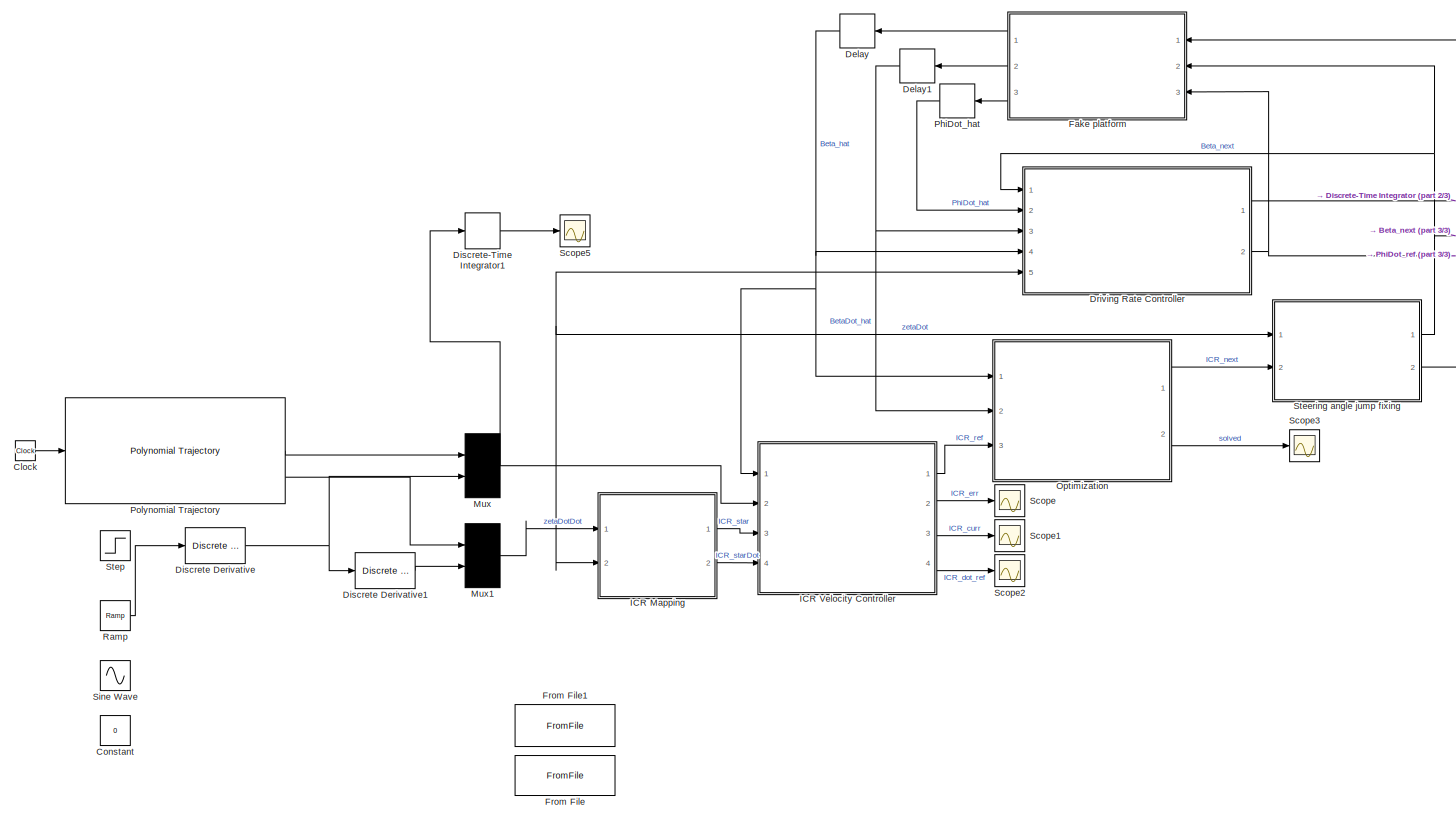
[diagram: root canvas - part 1/3, most of the canvas]
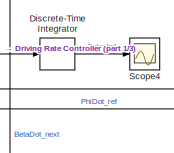
[diagram: root canvas - part 2/3, top right region]
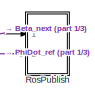
[diagram: root canvas - part 3/3, top right region]
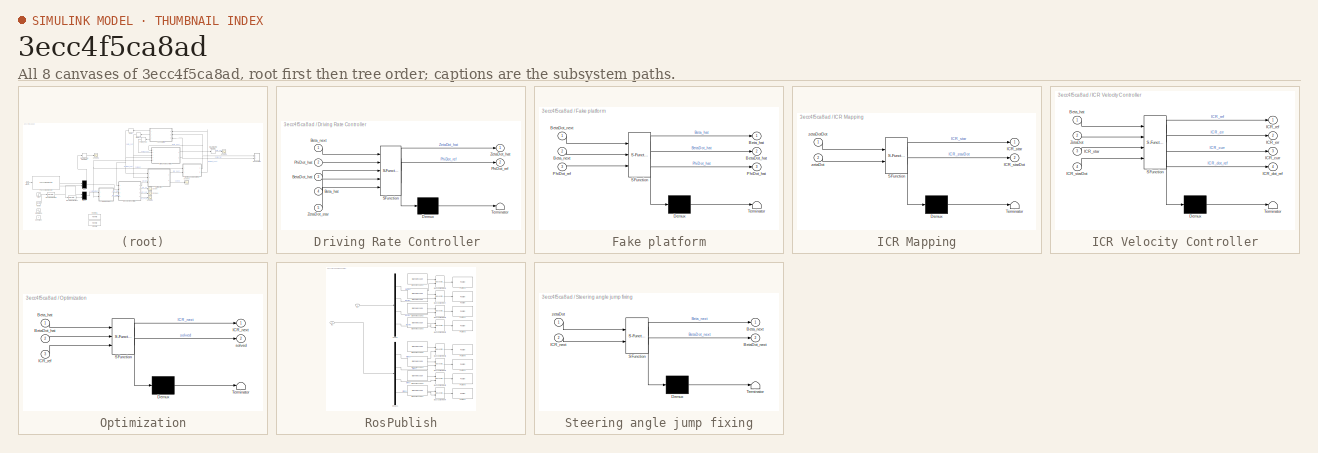
[diagram: thumbnail index - all 8 canvases of the model, root first then tree order]
MODEL slx_3ecc4f5ca8ad
KIND model
CONFIG AbsTol = auto
CONFIG EnableMultiTasking = off
CONFIG FixedStep = 0.01
CONFIG MaxStep = auto
CONFIG MinStep = auto
CONFIG RelTol = 1e-3
CONFIG SampleTimeConstraint = Unconstrained
CONFIG Solver = FixedStepAuto
CONFIG SolverName = FixedStepAuto
CONFIG StartTime = 0.0
CONFIG StopTime = 15
BLOCK [Clock] Clock
  Decimation = 1
BLOCK [Constant] Constant
  SampleTime = 0.01
  Value = 0
BLOCK [Delay] Delay
  DelayLength = 1
  InitialCondition = [0,0,0,0]
  InputPortMap = u0
  Ports = [1, 1]
  SampleTime = 0.01
BLOCK [Delay] Delay1
  DelayLength = 1
  InitialCondition = [0,0,0,0]
  InputPortMap = u0
  Ports = [1, 1]
  SampleTime = 0.01
BLOCK [Reference] Discrete Derivative  REF=simulink/Discrete/Discrete Derivative
  Ports = [1, 1]
  SourceBlock = simulink/Discrete/Discrete Derivative
  SourceProductBaseCode = SL
  SourceProductName = Simulink
  SourceType = Discrete Derivative
BLOCK [Reference] Discrete Derivative1  REF=simulink/Discrete/Discrete Derivative
  Ports = [1, 1]
  SourceBlock = simulink/Discrete/Discrete Derivative
  SourceProductBaseCode = SL
  SourceProductName = Simulink
  SourceType = Discrete Derivative
BLOCK [DiscreteIntegrator] Discrete-Time Integrator
  ICPrevOutput = DiscIntNeverNeededParam
  ICPrevScaledInput = DiscIntNeverNeededParam
  InitialCondition = [0;0;0]
  InitialConditionSetting = Auto
  Ports = [1, 1]
  SampleTime = 0.01
BLOCK [DiscreteIntegrator] Discrete-Time Integrator1
  ICPrevOutput = DiscIntNeverNeededParam
  ICPrevScaledInput = DiscIntNeverNeededParam
  InitialConditionSetting = Auto
  Ports = [1, 1]
  SampleTime = 0.01
BLOCK [SubSystem] Driving Rate Controller 
  ErrorFcn = Stateflow.Translate.translate
  PermitHierarchicalResolution = ExplicitOnly
  Ports = [5, 2]
  RequestExecContextInheritance = off
  SFBlockType = MATLAB Function
  TreatAsAtomicUnit = on
BLOCK [Demux] Driving Rate Controller / Demux 
  Outputs = 1
  Ports = [1, 1]
BLOCK [S-Function] Driving Rate Controller / SFunction 
  EnableBusSupport = on
  FunctionName = sf_sfun
  PortCounts = [5 3]
  Ports = [5, 3]
  SFcnIsStateOwnerBlock = off
  SFunctionDeploymentMode = off
  Tag = Stateflow S-Function controller 5
BLOCK [Terminator] Driving Rate Controller / Terminator 
BLOCK [Inport] Driving Rate Controller /BetaDot_hat
  IconDisplay = Port number
  Port = 3
BLOCK [Inport] Driving Rate Controller /Beta_hat
  IconDisplay = Port number
  Port = 4
BLOCK [Inport] Driving Rate Controller /Beta_next
  IconDisplay = Port number
BLOCK [Inport] Driving Rate Controller /PhiDot_hat
  IconDisplay = Port number
  Port = 2
BLOCK [Outport] Driving Rate Controller /PhiDot_ref
  IconDisplay = Port number
  Port = 2
BLOCK [Outport] Driving Rate Controller /ZetaDot_hat
  IconDisplay = Port number
BLOCK [Inport] Driving Rate Controller /ZetaDot_star
  IconDisplay = Port number
  Port = 5
BLOCK [SubSystem] Fake platform
  ErrorFcn = Stateflow.Translate.translate
  PermitHierarchicalResolution = ExplicitOnly
  Ports = [3, 3]
  RequestExecContextInheritance = off
  SFBlockType = MATLAB Function
  TreatAsAtomicUnit = on
BLOCK [Demux] Fake platform/ Demux 
  Outputs = 1
  Ports = [1, 1]
BLOCK [S-Function] Fake platform/ SFunction 
  EnableBusSupport = on
  FunctionName = sf_sfun
  PortCounts = [3 4]
  Ports = [3, 4]
  SFcnIsStateOwnerBlock = off
  SFunctionDeploymentMode = off
  Tag = Stateflow S-Function controller 4
BLOCK [Terminator] Fake platform/ Terminator 
BLOCK [Outport] Fake platform/BetaDot_hat
  IconDisplay = Port number
  Port = 2
BLOCK [Inport] Fake platform/BetaDot_next
  IconDisplay = Port number
BLOCK [Outport] Fake platform/Beta_hat
  IconDisplay = Port number
BLOCK [Inport] Fake platform/Beta_next
  IconDisplay = Port number
  Port = 2
BLOCK [Outport] Fake platform/PhiDot_hat
  IconDisplay = Port number
  Port = 3
BLOCK [Inport] Fake platform/PhiDot_ref
  IconDisplay = Port number
  Port = 3
BLOCK [FromFile] From File
  Commented = on
  FileName = ZetaDot.mat
  SampleTime = 0.01
BLOCK [FromFile] From File1
  Commented = on
  FileName = ZetaDotDot.mat
  SampleTime = 0.01
BLOCK [SubSystem] ICR Mapping
  ErrorFcn = Stateflow.Translate.translate
  PermitHierarchicalResolution = ExplicitOnly
  Ports = [2, 2]
  RequestExecContextInheritance = off
  SFBlockType = MATLAB Function
  TreatAsAtomicUnit = on
BLOCK [Demux] ICR Mapping/ Demux 
  Outputs = 1
  Ports = [1, 1]
BLOCK [S-Function] ICR Mapping/ SFunction 
  EnableBusSupport = on
  FunctionName = sf_sfun
  PortCounts = [2 3]
  Ports = [2, 3]
  SFcnIsStateOwnerBlock = off
  SFunctionDeploymentMode = off
  Tag = Stateflow S-Function controller 2
BLOCK [Terminator] ICR Mapping/ Terminator 
BLOCK [Outport] ICR Mapping/ICR_star
  IconDisplay = Port number
BLOCK [Outport] ICR Mapping/ICR_starDot
  IconDisplay = Port number
  Port = 2
BLOCK [Inport] ICR Mapping/zetaDot
  IconDisplay = Port number
  Port = 2
BLOCK [Inport] ICR Mapping/zetaDotDot
  IconDisplay = Port number
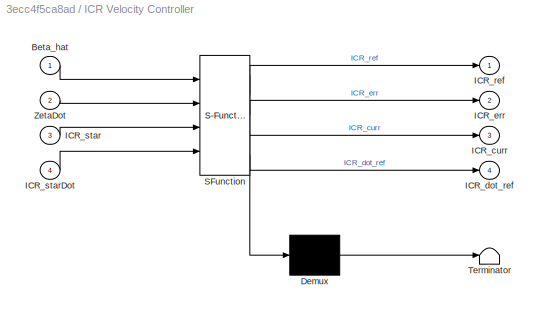
BLOCK [SubSystem] ICR Velocity Controller
  ErrorFcn = Stateflow.Translate.translate
  PermitHierarchicalResolution = ExplicitOnly
  Ports = [4, 4]
  RequestExecContextInheritance = off
  SFBlockType = MATLAB Function
  TreatAsAtomicUnit = on
BLOCK [Demux] ICR Velocity Controller/ Demux 
  Outputs = 1
  Ports = [1, 1]
BLOCK [S-Function] ICR Velocity Controller/ SFunction 
  EnableBusSupport = on
  FunctionName = sf_sfun
  PortCounts = [4 5]
  Ports = [4, 5]
  SFcnIsStateOwnerBlock = off
  SFunctionDeploymentMode = off
  Tag = Stateflow S-Function controller 1
BLOCK [Terminator] ICR Velocity Controller/ Terminator 
BLOCK [Inport] ICR Velocity Controller/Beta_hat
  IconDisplay = Port number
BLOCK [Outport] ICR Velocity Controller/ICR_curr
  IconDisplay = Port number
  Port = 3
BLOCK [Outport] ICR Velocity Controller/ICR_dot_ref
  IconDisplay = Port number
  Port = 4
BLOCK [Outport] ICR Velocity Controller/ICR_err
  IconDisplay = Port number
  Port = 2
BLOCK [Outport] ICR Velocity Controller/ICR_ref
  IconDisplay = Port number
BLOCK [Inport] ICR Velocity Controller/ICR_star
  IconDisplay = Port number
  Port = 3
BLOCK [Inport] ICR Velocity Controller/ICR_starDot
  IconDisplay = Port number
  Port = 4
BLOCK [Inport] ICR Velocity Controller/ZetaDot
  IconDisplay = Port number
  Port = 2
BLOCK [Mux] Mux
  DisplayOption = signals
  Inputs = 2
  Ports = [2, 1]
BLOCK [Mux] Mux1
  DisplayOption = signals
  Inputs = 2
  Ports = [2, 1]
BLOCK [SubSystem] Optimization
  ErrorFcn = Stateflow.Translate.translate
  PermitHierarchicalResolution = ExplicitOnly
  Ports = [3, 2]
  RequestExecContextInheritance = off
  SFBlockType = MATLAB Function
  TreatAsAtomicUnit = on
BLOCK [Demux] Optimization/ Demux 
  Outputs = 1
  Ports = [1, 1]
BLOCK [S-Function] Optimization/ SFunction 
  EnableBusSupport = on
  FunctionName = sf_sfun
  PortCounts = [3 3]
  Ports = [3, 3]
  SFcnIsStateOwnerBlock = off
  SFunctionDeploymentMode = off
  Tag = Stateflow S-Function controller 3
BLOCK [Terminator] Optimization/ Terminator 
BLOCK [Inport] Optimization/BetaDot_hat
  IconDisplay = Port number
  Port = 2
BLOCK [Inport] Optimization/Beta_hat
  IconDisplay = Port number
BLOCK [Outport] Optimization/ICR_next
  IconDisplay = Port number
BLOCK [Inport] Optimization/ICR_ref
  IconDisplay = Port number
  Port = 3
BLOCK [Outport] Optimization/solved
  IconDisplay = Port number
  Port = 2
BLOCK [Delay] PhiDot_hat
  DelayLength = 1
  InitialCondition = [0,0,0,0]
  InputPortMap = u0
  Ports = [1, 1]
  SampleTime = 0.01
BLOCK [Reference] Polynomial Trajectory  REF=robotcorelib/Polynomial Trajectory
  Ports = [1, 3]
  SourceBlock = robotcorelib/Polynomial Trajectory
  SourceProductBaseCode = RO
  SourceProductName = Robotics System Toolbox
  SourceType = robotics.slcore.internal.block.PolyTrajSys
BLOCK [Reference] Ramp  REF=simulink/Sources/Ramp
  Ports = [0, 1]
  SourceBlock = simulink/Sources/Ramp
  SourceProductBaseCode = SL
  SourceProductName = Simulink
  SourceType = Ramp
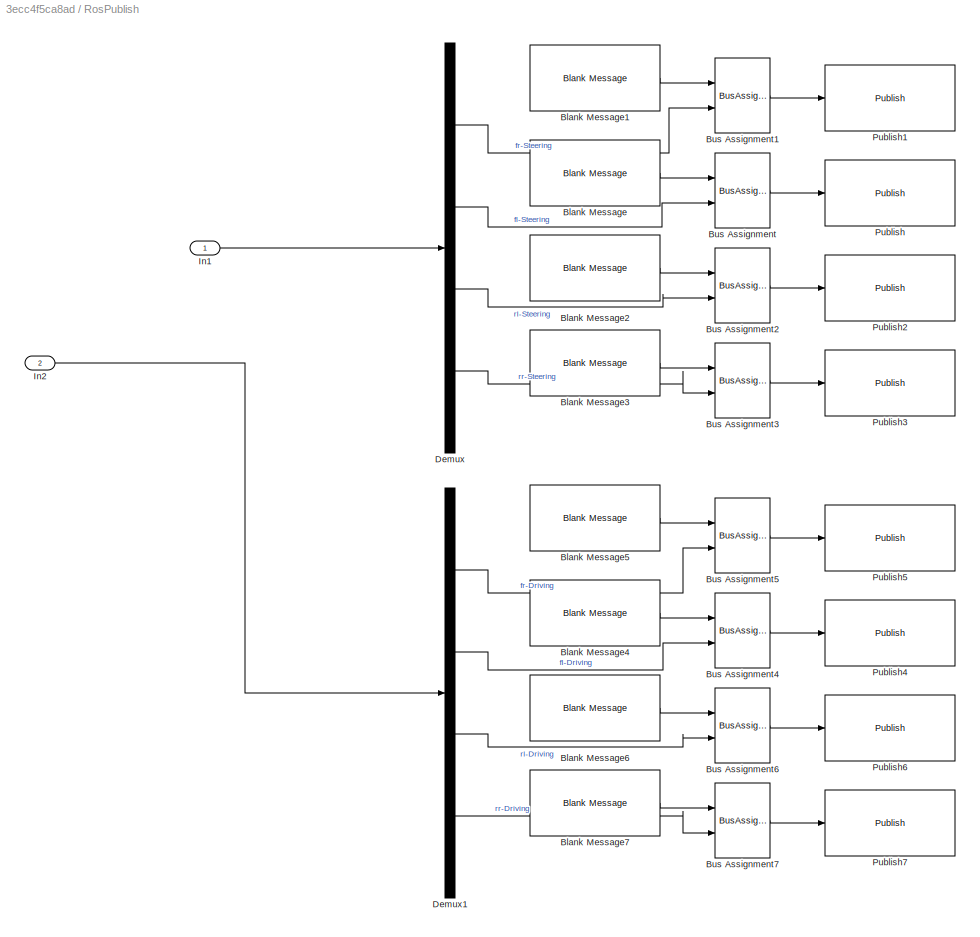
BLOCK [SubSystem] RosPublish
  Commented = on
  Ports = [2]
  RequestExecContextInheritance = off
BLOCK [Reference] RosPublish/Blank Message  REF=robotlib/Blank Message
  Ports = [0, 1]
  SourceBlock = robotlib/Blank Message
  SourceProductBaseCode = RO
  SourceProductName = Robotics System Toolbox
  SourceType = ROS Blank Message
BLOCK [Reference] RosPublish/Blank Message1  REF=robotlib/Blank Message
  Ports = [0, 1]
  SourceBlock = robotlib/Blank Message
  SourceProductBaseCode = RO
  SourceProductName = Robotics System Toolbox
  SourceType = ROS Blank Message
BLOCK [Reference] RosPublish/Blank Message2  REF=robotlib/Blank Message
  Ports = [0, 1]
  SourceBlock = robotlib/Blank Message
  SourceProductBaseCode = RO
  SourceProductName = Robotics System Toolbox
  SourceType = ROS Blank Message
BLOCK [Reference] RosPublish/Blank Message3  REF=robotlib/Blank Message
  Ports = [0, 1]
  SourceBlock = robotlib/Blank Message
  SourceProductBaseCode = RO
  SourceProductName = Robotics System Toolbox
  SourceType = ROS Blank Message
BLOCK [Reference] RosPublish/Blank Message4  REF=robotlib/Blank Message
  Ports = [0, 1]
  SourceBlock = robotlib/Blank Message
  SourceProductBaseCode = RO
  SourceProductName = Robotics System Toolbox
  SourceType = ROS Blank Message
BLOCK [Reference] RosPublish/Blank Message5  REF=robotlib/Blank Message
  Ports = [0, 1]
  SourceBlock = robotlib/Blank Message
  SourceProductBaseCode = RO
  SourceProductName = Robotics System Toolbox
  SourceType = ROS Blank Message
BLOCK [Reference] RosPublish/Blank Message6  REF=robotlib/Blank Message
  Ports = [0, 1]
  SourceBlock = robotlib/Blank Message
  SourceProductBaseCode = RO
  SourceProductName = Robotics System Toolbox
  SourceType = ROS Blank Message
BLOCK [Reference] RosPublish/Blank Message7  REF=robotlib/Blank Message
  Ports = [0, 1]
  SourceBlock = robotlib/Blank Message
  SourceProductBaseCode = RO
  SourceProductName = Robotics System Toolbox
  SourceType = ROS Blank Message
BLOCK [BusAssignment] RosPublish/Bus Assignment
  AssignedSignals = Data
  Ports = [2, 1]
BLOCK [BusAssignment] RosPublish/Bus Assignment1
  AssignedSignals = Data
  Ports = [2, 1]
BLOCK [BusAssignment] RosPublish/Bus Assignment2
  AssignedSignals = Data
  Ports = [2, 1]
BLOCK [BusAssignment] RosPublish/Bus Assignment3
  AssignedSignals = Data
  Ports = [2, 1]
BLOCK [BusAssignment] RosPublish/Bus Assignment4
  AssignedSignals = Data
  Ports = [2, 1]
BLOCK [BusAssignment] RosPublish/Bus Assignment5
  AssignedSignals = Data
  Ports = [2, 1]
BLOCK [BusAssignment] RosPublish/Bus Assignment6
  AssignedSignals = Data
  Ports = [2, 1]
BLOCK [BusAssignment] RosPublish/Bus Assignment7
  AssignedSignals = Data
  Ports = [2, 1]
BLOCK [Demux] RosPublish/Demux
  DisplayOption = bar
  Ports = [1, 4]
BLOCK [Demux] RosPublish/Demux1
  DisplayOption = bar
  Ports = [1, 4]
BLOCK [Inport] RosPublish/In1
  IconDisplay = Port number
BLOCK [Inport] RosPublish/In2
  IconDisplay = Port number
  Port = 2
BLOCK [Reference] RosPublish/Publish  REF=robotlib/Publish
  Ports = [1]
  SourceBlock = robotlib/Publish
  SourceProductBaseCode = RO
  SourceProductName = Robotics System Toolbox
  SourceType = ROS Publish
BLOCK [Reference] RosPublish/Publish1  REF=robotlib/Publish
  Ports = [1]
  SourceBlock = robotlib/Publish
  SourceProductBaseCode = RO
  SourceProductName = Robotics System Toolbox
  SourceType = ROS Publish
BLOCK [Reference] RosPublish/Publish2  REF=robotlib/Publish
  Ports = [1]
  SourceBlock = robotlib/Publish
  SourceProductBaseCode = RO
  SourceProductName = Robotics System Toolbox
  SourceType = ROS Publish
BLOCK [Reference] RosPublish/Publish3  REF=robotlib/Publish
  Ports = [1]
  SourceBlock = robotlib/Publish
  SourceProductBaseCode = RO
  SourceProductName = Robotics System Toolbox
  SourceType = ROS Publish
BLOCK [Reference] RosPublish/Publish4  REF=robotlib/Publish
  Ports = [1]
  SourceBlock = robotlib/Publish
  SourceProductBaseCode = RO
  SourceProductName = Robotics System Toolbox
  SourceType = ROS Publish
BLOCK [Reference] RosPublish/Publish5  REF=robotlib/Publish
  Ports = [1]
  SourceBlock = robotlib/Publish
  SourceProductBaseCode = RO
  SourceProductName = Robotics System Toolbox
  SourceType = ROS Publish
BLOCK [Reference] RosPublish/Publish6  REF=robotlib/Publish
  Ports = [1]
  SourceBlock = robotlib/Publish
  SourceProductBaseCode = RO
  SourceProductName = Robotics System Toolbox
  SourceType = ROS Publish
BLOCK [Reference] RosPublish/Publish7  REF=robotlib/Publish
  Ports = [1]
  SourceBlock = robotlib/Publish
  SourceProductBaseCode = RO
  SourceProductName = Robotics System Toolbox
  SourceType = ROS Publish
BLOCK [Scope] Scope
  Floating = off
  NumInputPorts = 1
  Ports = [1]
  ScopeSpecificationString = Simulink.scopes.TimeScopeBlockCfg('CurrentConfiguration', extmgr.ConfigurationSet(extmgr.Configuration('Core','General UI',true),extmgr.Configuration('Core','Source UI',true),extmgr.Configuration('Sources','WiredSimulink',true),extmgr.Configuration('Visuals','Time Domain',true),extmgr.Configuration('Tools','Plot Navigation',true),extmgr.Configuration('Tools','Measurements',true)),'Version','2018b'...<+1ch>
BLOCK [Scope] Scope1
  Floating = off
  NumInputPorts = 1
  Ports = [1]
  ScopeSpecificationString = Simulink.scopes.TimeScopeBlockCfg('CurrentConfiguration', extmgr.ConfigurationSet(extmgr.Configuration('Core','General UI',true),extmgr.Configuration('Core','Source UI',true),extmgr.Configuration('Sources','WiredSimulink',true,'DataLoggingVariableName','ScopeData1'),extmgr.Configuration('Visuals','Time Domain',true),extmgr.Configuration('Tools','Plot Navigation',true),extmgr.Configuration('Tools',...<+40ch>
BLOCK [Scope] Scope2
  Floating = off
  NumInputPorts = 1
  Ports = [1]
  ScopeSpecificationString = Simulink.scopes.TimeScopeBlockCfg('CurrentConfiguration', extmgr.ConfigurationSet(extmgr.Configuration('Core','General UI',true),extmgr.Configuration('Core','Source UI',true),extmgr.Configuration('Sources','WiredSimulink',true,'DataLoggingVariableName','ScopeData2'),extmgr.Configuration('Visuals','Time Domain',true),extmgr.Configuration('Tools','Plot Navigation',true),extmgr.Configuration('Tools',...<+40ch>
BLOCK [Scope] Scope3
  Floating = off
  NumInputPorts = 1
  Ports = [1]
  ScopeSpecificationString = Simulink.scopes.TimeScopeBlockCfg('CurrentConfiguration', extmgr.ConfigurationSet(extmgr.Configuration('Core','General UI',true),extmgr.Configuration('Core','Source UI',true),extmgr.Configuration('Sources','WiredSimulink',true,'DataLoggingVariableName','ScopeData1'),extmgr.Configuration('Visuals','Time Domain',true),extmgr.Configuration('Tools','Plot Navigation',true),extmgr.Configuration('Tools',...<+40ch>
BLOCK [Scope] Scope4
  Floating = off
  NumInputPorts = 1
  Ports = [1]
  ScopeSpecificationString = Simulink.scopes.TimeScopeBlockCfg('CurrentConfiguration', extmgr.ConfigurationSet(extmgr.Configuration('Core','General UI',true),extmgr.Configuration('Core','Source UI',true),extmgr.Configuration('Sources','WiredSimulink',true,'DataLoggingVariableName','ScopeData1'),extmgr.Configuration('Visuals','Time Domain',true,'SerializedDisplays',{struct('MinYLimReal','-0.36972','MaxYLimReal','3.32741','YLab...<+1424ch>
BLOCK [Scope] Scope5
  Floating = off
  NumInputPorts = 1
  Ports = [1]
  ScopeSpecificationString = Simulink.scopes.TimeScopeBlockCfg('CurrentConfiguration', extmgr.ConfigurationSet(extmgr.Configuration('Core','General UI',true),extmgr.Configuration('Core','Source UI',true),extmgr.Configuration('Sources','WiredSimulink',true,'DataLoggingVariableName','ScopeData2'),extmgr.Configuration('Visuals','Time Domain',true,'SerializedDisplays',{struct('MinYLimReal','-0.37015','MaxYLimReal','3.33133','YLab...<+1476ch>
BLOCK [Sin] Sine Wave
  Amplitude = pi
  Frequency = 2*pi/15
  Ports = [0, 1]
  SampleTime = 0
BLOCK [SubSystem] Steering angle jump fixing
  ErrorFcn = Stateflow.Translate.translate
  PermitHierarchicalResolution = ExplicitOnly
  Ports = [2, 2]
  RequestExecContextInheritance = off
  SFBlockType = MATLAB Function
  TreatAsAtomicUnit = on
BLOCK [Demux] Steering angle jump fixing/ Demux 
  Outputs = 1
  Ports = [1, 1]
BLOCK [S-Function] Steering angle jump fixing/ SFunction 
  EnableBusSupport = on
  FunctionName = sf_sfun
  PortCounts = [2 3]
  Ports = [2, 3]
  SFcnIsStateOwnerBlock = off
  SFunctionDeploymentMode = off
  Tag = Stateflow S-Function controller 6
BLOCK [Terminator] Steering angle jump fixing/ Terminator 
BLOCK [Outport] Steering angle jump fixing/BetaDot_next
  IconDisplay = Port number
  Port = 2
BLOCK [Outport] Steering angle jump fixing/Beta_next
  IconDisplay = Port number
BLOCK [Inport] Steering angle jump fixing/ICR_next
  IconDisplay = Port number
  Port = 2
BLOCK [Inport] Steering angle jump fixing/zetaDot
  IconDisplay = Port number
BLOCK [Step] Step
  After = pi/4
  SampleTime = 0
  Time = 7.5
LINE Clock:1 -> Polynomial Trajectory:1
NET Delay1:1 -> Driving Rate Controller :3, Optimization:2
NET Delay:1 -> Driving Rate Controller :4, ICR Velocity Controller:1, Optimization:1
LINE Discrete Derivative1:1 -> Mux1:2
NET Discrete Derivative:1 -> Discrete Derivative1:1, Mux:2
LINE Discrete-Time Integrator1:1 -> Scope5:1
LINE Discrete-Time Integrator:1 -> Scope4:1
LINE Driving Rate Controller :1 -> Discrete-Time Integrator:1
NET Driving Rate Controller :2 -> Fake platform:3, RosPublish:2
LINE Fake platform:1 -> Delay:1
LINE Fake platform:2 -> Delay1:1
LINE Fake platform:3 -> PhiDot_hat:1
LINE ICR Mapping:1 -> ICR Velocity Controller:3
LINE ICR Mapping:2 -> ICR Velocity Controller:4
LINE ICR Velocity Controller:1 -> Optimization:3
LINE ICR Velocity Controller:2 -> Scope:1
LINE ICR Velocity Controller:3 -> Scope1:1
LINE ICR Velocity Controller:4 -> Scope2:1
LINE Mux1:1 -> ICR Mapping:1
NET Mux:1 -> Discrete-Time Integrator1:1, Driving Rate Controller :5, ICR Mapping:2, ICR Velocity Controller:2, Steering angle jump fixing:1
LINE Optimization:1 -> Steering angle jump fixing:2
LINE Optimization:2 -> Scope3:1
LINE PhiDot_hat:1 -> Driving Rate Controller :2
LINE Polynomial Trajectory:2 -> Mux:1
LINE Polynomial Trajectory:3 -> Mux1:1
LINE Ramp:1 -> Discrete Derivative:1
LINE RosPublish/Blank Message1:1 -> RosPublish/Bus Assignment1:1
LINE RosPublish/Blank Message2:1 -> RosPublish/Bus Assignment2:1
LINE RosPublish/Blank Message3:1 -> RosPublish/Bus Assignment3:1
LINE RosPublish/Blank Message4:1 -> RosPublish/Bus Assignment4:1
LINE RosPublish/Blank Message5:1 -> RosPublish/Bus Assignment5:1
LINE RosPublish/Blank Message6:1 -> RosPublish/Bus Assignment6:1
LINE RosPublish/Blank Message7:1 -> RosPublish/Bus Assignment7:1
LINE RosPublish/Blank Message:1 -> RosPublish/Bus Assignment:1
LINE RosPublish/Bus Assignment1:1 -> RosPublish/Publish1:1
LINE RosPublish/Bus Assignment2:1 -> RosPublish/Publish2:1
LINE RosPublish/Bus Assignment3:1 -> RosPublish/Publish3:1
LINE RosPublish/Bus Assignment4:1 -> RosPublish/Publish4:1
LINE RosPublish/Bus Assignment5:1 -> RosPublish/Publish5:1
LINE RosPublish/Bus Assignment6:1 -> RosPublish/Publish6:1
LINE RosPublish/Bus Assignment7:1 -> RosPublish/Publish7:1
LINE RosPublish/Bus Assignment:1 -> RosPublish/Publish:1
LINE RosPublish/Demux1:1 -> RosPublish/Bus Assignment5:2
LINE RosPublish/Demux1:2 -> RosPublish/Bus Assignment4:2
LINE RosPublish/Demux1:3 -> RosPublish/Bus Assignment6:2
LINE RosPublish/Demux1:4 -> RosPublish/Bus Assignment7:2
LINE RosPublish/Demux:1 -> RosPublish/Bus Assignment1:2
LINE RosPublish/Demux:2 -> RosPublish/Bus Assignment:2
LINE RosPublish/Demux:3 -> RosPublish/Bus Assignment2:2
LINE RosPublish/Demux:4 -> RosPublish/Bus Assignment3:2
LINE RosPublish/In1:1 -> RosPublish/Demux:1
LINE RosPublish/In2:1 -> RosPublish/Demux1:1
NET Steering angle jump fixing:1 -> Driving Rate Controller :1, Fake platform:2, RosPublish:1
LINE Steering angle jump fixing:2 -> Fake platform:1
note: NET lines group one-source signal fan-out (src -> all destinations, sorted); 1:1 wires keep LINE
CHART ICR Velocity Controller states=1 transitions=1
  STATE_LABEL 'eML_blk_kernel()'
  STATE_LABEL 'SCRIPT:\nfunction [ICR_ref,ICR_err,ICR_curr,ICR_dot_ref] = ICR_vel_Controller(Beta_hat, ZetaDot, ICR_star, ICR_starDot)\n\nR_max = 20;\ndeltaT=0.01;\nvehicle.length = 0.526;  % Vehicle length\nvehicle.width = 0.526;   % Vehicle width\nwheel.radius = 0.084; %\nwheel.offcentre = 0.0; %\na = vehicle.width/2;\nb = vehicle.length/2;\nrw = wheel.radius;\nhx = b;\nhy = a;\nd = wheel.offcentre;\n\nhx1 = hx;\nhx2 = hx;\nhx3...<+1724ch>'
CHART ICR Mapping states=1 transitions=1
  STATE_LABEL 'eML_blk_kernel()'
  STATE_LABEL 'SCRIPT:\nfunction [ICR_star, ICR_starDot] = mappingICR(zetaDotDot, zetaDot)\nR_max = 20;\n% V_max = 10;\ndelta1 = 1e-9;\ndeltaT=0.01;\npersistent previousICRstar;\nif isempty(previousICRstar)\n    previousICRstar = [0,R_max];\nend\n\nICR_X_star = R_max * tanh(-zetaDot(2)/(zetaDot(3) + delta1*sign(1-any(zetaDot(3),2)+zetaDot(3)))/R_max);\nICR_Y_star = R_max * tanh(zetaDot(1)/(zetaDot(3) + delta1*sign(1-any(zet...<+414ch>'
CHART Optimization states=1 transitions=1
  STATE_LABEL 'eML_blk_kernel()'
  STATE_LABEL "SCRIPT:\nfunction [ICR_next,solved] = Optimization(Beta_hat, BetaDot_hat, ICR_ref)\ncoder.extrinsic('CO_toolbox');\nsolved=0;\nICR_next=ICR_ref;\ndeltaT=0.01;\n%% Parameters of mobiler robot from the paper\n\nhx1 = 0.263;\nhx2 = 0.263; \nhx3 = -0.263;\nhx4 = -0.263;\n\nhy1 = -0.263;\nhy2 = 0.263;\nhy3 = 0.263;\nhy4 = -0.263;\n\nhxi =[hx1, hx2, hx3, hx4];\nhyi =[hy1, hy2, hy3, hy4];\nh_i=[hxi(1),hyi(1);hxi(2),hyi(2);h...<+3608ch>"
CHART Fake platform states=1 transitions=1
  STATE_LABEL 'eML_blk_kernel()'
  STATE_LABEL 'SCRIPT:\nfunction [Beta_hat,  BetaDot_hat, PhiDot_hat] = FeedbackModel(BetaDot_next, Beta_next, PhiDot_ref)\n%Remove when adopt to real platform, all the output values need to be\n%replace with real feedback.\n\n% Simulating the platform by assuming perfect steering performance/feedback and\n% white noise on driving velocity feedback.\n\n\n\nLimit_phiDot = 23;\nBeta_hat = zeros(1,4);\nBetaDot_hat = zeros(1,4)...<+361ch>'
CHART Driving Rate Controller
 states=1 transitions=1
  STATE_LABEL 'eML_blk_kernel()'
  STATE_LABEL "SCRIPT:\nfunction [ZetaDot_hat, PhiDot_ref]  = Driving_Rate_Controller(Beta_next, PhiDot_hat, BetaDot_hat,  Beta_hat, ZetaDot_star)\n%% Parameters\ndeltaT=0.01;\n\n% if 4 ~= size(PhiDot_hat_,2)\n%     PhiDot_hat = PhiDot_hat_';\n% else\n%      PhiDot_hat = PhiDot_hat_;\n% end\nvehicle.length = 0.526;  % Vehicle length\nvehicle.width = 0.526;   % Vehicle width\nwheel.radius = 0.084; %\nwheel.offcentre = 0.0; %\n...<+1061ch>"
CHART Steering angle jump fixing states=1 transitions=1
  STATE_LABEL 'eML_blk_kernel()'
  STATE_LABEL 'SCRIPT:\nfunction [Beta_next,BetaDot_next] = Steering_angle_fixing( zetaDot, ICR_next)\nR_max = 20;\ndeltaT = 0.01;\npersistent Beta_curr;\nif isempty(Beta_curr)\n    Beta_curr = zeros(1,4);\nend\n\nvehicle.length = 0.526;  % Vehicle length\nvehicle.width = 0.526;   % Vehicle width\nwheel.radius = 0.084; %\nwheel.offcentre = 0.0; %\na = vehicle.width/2;\nb = vehicle.length/2;\nrw = wheel.radius;\nhx = b;\nhy = a;\n...<+1176ch>'
